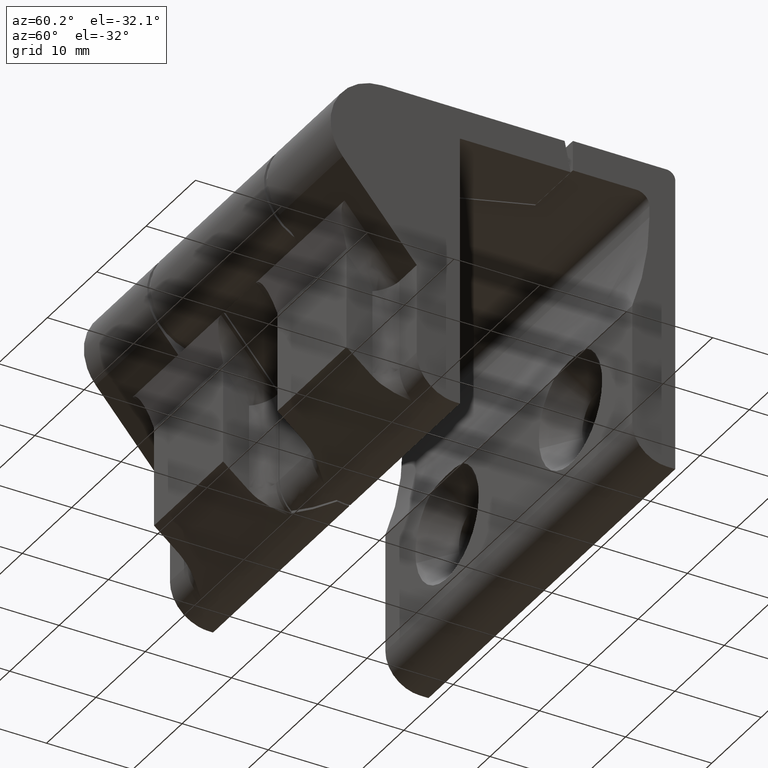
[diagram: clean part render]
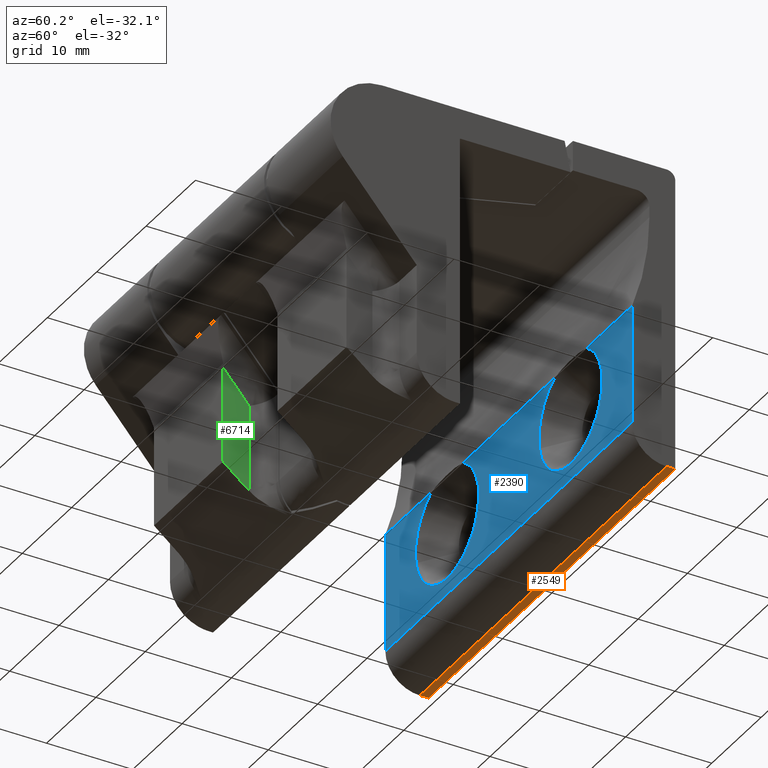
[diagram: same view with three faces highlighted in distinct colors, each labeled with its STEP entity id]
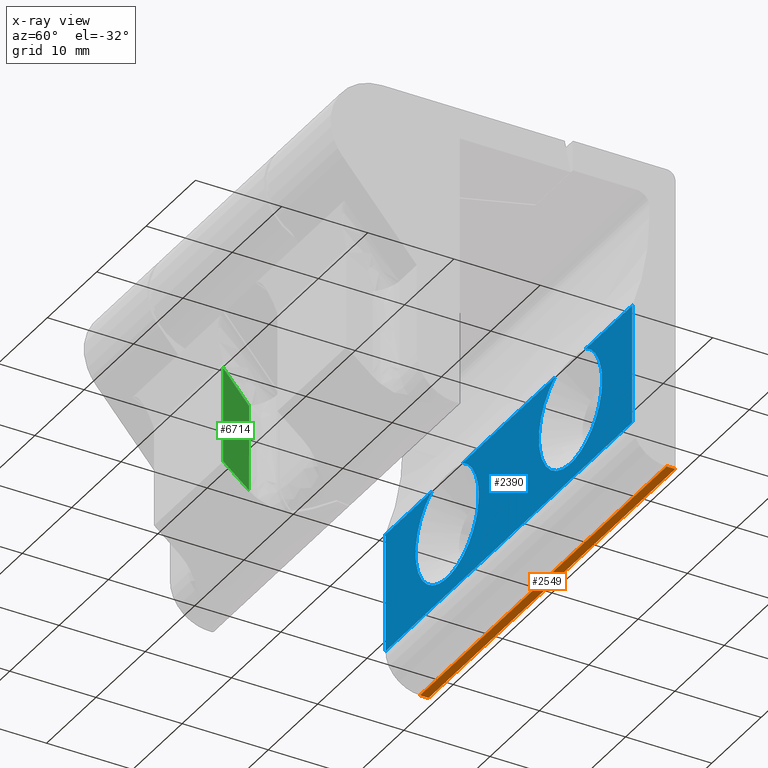
[diagram: x-ray of the same camera — body ghosted, the three highlighted faces saturated]
A machine part, auxiliary view with three faces highlighted in distinct colors.
The next image is the same camera in x-ray (body ghosted, the three faces saturated) — at least one of them is partly hidden behind the body in this view.
Their STEP definitions:

[orange] entity #2549 — the highlighted face is a freeform B-spline surface patch.
#2234=CARTESIAN_POINT('',(-25.0,0.0,3.703349E-011));
#2235=VERTEX_POINT('',#2234);
#2241=CARTESIAN_POINT('',(-25.0,-1.0,3.714717E-011));
#2242=VERTEX_POINT('',#2241);
#2243=CARTESIAN_POINT('',(-25.0,-1.0,3.714717E-011));
#2244=CARTESIAN_POINT('',(-25.0,0.0,3.703349E-011));
#2245=QUASI_UNIFORM_CURVE('',1,(#2243,#2244),.UNSPECIFIED.,.F.,.U.);
#2246=EDGE_CURVE('',#2242,#2235,#2245,.T.);
#2323=CARTESIAN_POINT('',(25.0,-1.0,3.714717E-011));
#2324=VERTEX_POINT('',#2323);
#2325=CARTESIAN_POINT('',(25.0,-1.0,3.714717E-011));
#2326=CARTESIAN_POINT('',(-25.0,-1.0,3.714717E-011));
#2327=QUASI_UNIFORM_CURVE('',1,(#2325,#2326),.UNSPECIFIED.,.F.,.U.);
#2328=EDGE_CURVE('',#2324,#2242,#2327,.T.);
#2528=CARTESIAN_POINT('',(-27.497499903090301,-1.049949998061806,3.703349E-011));
#2529=CARTESIAN_POINT('',(27.497501244194812,-1.049949998061806,3.703349E-011));
#2530=CARTESIAN_POINT('',(-27.497499903090301,0.049950024883896,3.703349E-011));
#2531=CARTESIAN_POINT('',(27.497501244194812,0.049950024883896,3.703349E-011));
#2532=B_SPLINE_SURFACE_WITH_KNOTS('',1,1,((#2528,#2530),(#2529,#2531)),.UNSPECIFIED.,.F.,.F.,.U.,(2,2),(2,2),(0.0,54.995001147285109),(0.041708334948495,0.958291687403247),.UNSPECIFIED.);
#2533=ORIENTED_EDGE('',*,*,#2246,.T.);
#2534=CARTESIAN_POINT('',(25.0,0.0,3.703349E-011));
#2535=VERTEX_POINT('',#2534);
#2536=CARTESIAN_POINT('',(25.0,0.0,3.703349E-011));
#2537=CARTESIAN_POINT('',(-25.0,0.0,3.703349E-011));
#2538=QUASI_UNIFORM_CURVE('',1,(#2536,#2537),.UNSPECIFIED.,.F.,.U.);
#2539=EDGE_CURVE('',#2535,#2235,#2538,.T.);
#2540=ORIENTED_EDGE('',*,*,#2539,.F.);
#2541=CARTESIAN_POINT('',(25.0,-1.0,3.714717E-011));
#2542=CARTESIAN_POINT('',(25.0,0.0,3.703349E-011));
#2543=QUASI_UNIFORM_CURVE('',1,(#2541,#2542),.UNSPECIFIED.,.F.,.U.);
#2544=EDGE_CURVE('',#2324,#2535,#2543,.T.);
#2545=ORIENTED_EDGE('',*,*,#2544,.F.);
#2546=ORIENTED_EDGE('',*,*,#2328,.T.);
#2547=EDGE_LOOP('',(#2533,#2540,#2545,#2546));
#2548=FACE_OUTER_BOUND('',#2547,.T.);
#2549=ADVANCED_FACE('',(#2548),#2532,.F.);

[blue] entity #2390 — the highlighted face is a freeform B-spline surface patch.
#23=CARTESIAN_POINT('',(-6.215350853110225,-5.000000000001153,13.509621883394569));
#24=VERTEX_POINT('',#23);
#25=CARTESIAN_POINT('',(-9.338250573317689,-4.999999999999930,17.864471274386400));
#26=VERTEX_POINT('',#25);
#27=CARTESIAN_POINT('',(-6.215350853110225,-5.000000000001153,13.509621883394571));
#28=CARTESIAN_POINT('',(-6.772994179405200,-5.000000000000541,16.406884824056164));
#29=CARTESIAN_POINT('',(-9.338250573317689,-4.999999999999930,17.864471274386400));
#37=(BOUNDED_CURVE()B_SPLINE_CURVE(2,(#27,#28,#29),.UNSPECIFIED.,.F.,.U.)B_SPLINE_CURVE_WITH_KNOTS((3,3),(0.836725414062064,1.0),.UNSPECIFIED.)CURVE()GEOMETRIC_REPRESENTATION_ITEM()RATIONAL_B_SPLINE_CURVE((0.905888387659489,0.864354045814700,1.0))REPRESENTATION_ITEM(''));
#38=EDGE_CURVE('',#24,#26,#37,.T.);
#40=CARTESIAN_POINT('',(-15.661749426682549,-4.999999999999941,17.864471274386450));
#41=VERTEX_POINT('',#40);
#63=CARTESIAN_POINT('',(-18.784649146897198,-5.000000000001527,11.090378116716490));
#64=VERTEX_POINT('',#63);
#65=CARTESIAN_POINT('',(-15.661749426682549,-4.999999999999941,17.864471274386450));
#66=CARTESIAN_POINT('',(-19.652079338343942,-5.000000000000728,15.597153736307485));
#67=CARTESIAN_POINT('',(-18.784649146897202,-5.000000000001527,11.090378116716495));
#75=(BOUNDED_CURVE()B_SPLINE_CURVE(2,(#65,#66,#67),.UNSPECIFIED.,.F.,.U.)B_SPLINE_CURVE_WITH_KNOTS((3,3),(0.0,0.236180843232991),.UNSPECIFIED.)CURVE()GEOMETRIC_REPRESENTATION_ITEM()RATIONAL_B_SPLINE_CURVE((1.0,0.803784675633441,0.978307757379911))REPRESENTATION_ITEM(''));
#76=EDGE_CURVE('',#41,#64,#75,.T.);
#158=CARTESIAN_POINT('',(-18.784649146897195,-5.000000000001527,11.090378116716487));
#159=CARTESIAN_POINT('',(-18.743379952205036,-5.000000000001527,10.875962014634066));
#160=CARTESIAN_POINT('',(-18.687593076315551,-5.000000000001527,10.664857216627841));
#161=CARTESIAN_POINT('',(-17.428424641091205,-5.000000000001517,5.900000000022599));
#162=CARTESIAN_POINT('',(-12.500000000000441,-5.000000000001375,5.900000000022803));
#163=CARTESIAN_POINT('',(-7.571575358909541,-5.000000000001234,5.900000000023004));
#164=CARTESIAN_POINT('',(-6.312406923684903,-5.000000000001172,10.664857216628519));
#165=CARTESIAN_POINT('',(-5.939451016309459,-5.000000000001153,12.076170903519431));
#166=CARTESIAN_POINT('',(-6.215350853110225,-5.000000000001153,13.509621883394571));
#174=(BOUNDED_CURVE()B_SPLINE_CURVE(2,(#158,#159,#160,#161,#162,#163,#164,#165,#166),.UNSPECIFIED.,.F.,.U.)B_SPLINE_CURVE_WITH_KNOTS((3,2,2,2,3),(0.236180843232990,0.250000000000000,0.500000000000000,0.750000000000000,0.836725414062064),.UNSPECIFIED.)CURVE()GEOMETRIC_REPRESENTATION_ITEM()RATIONAL_B_SPLINE_CURVE((0.978307757379911,0.988519262229764,1.0,0.792303937863206,1.0,0.792303937863206,1.0,0.927949892048506,0.905888387659489))REPRESENTATION_ITEM(''));
#175=EDGE_CURVE('',#64,#24,#174,.T.);
#245=CARTESIAN_POINT('',(18.784649146889780,-5.000000000001163,13.509621883394511));
#246=VERTEX_POINT('',#245);
#247=CARTESIAN_POINT('',(15.661749426682400,-4.999999999999941,17.864471274386450));
#248=VERTEX_POINT('',#247);
#249=CARTESIAN_POINT('',(18.784649146889784,-5.000000000001163,13.509621883394518));
#250=CARTESIAN_POINT('',(18.227005820594851,-5.000000000000552,16.406884824056149));
#251=CARTESIAN_POINT('',(15.661749426682400,-4.999999999999941,17.864471274386450));
#259=(BOUNDED_CURVE()B_SPLINE_CURVE(2,(#249,#250,#251),.UNSPECIFIED.,.F.,.U.)B_SPLINE_CURVE_WITH_KNOTS((3,3),(0.836725414062064,1.0),.UNSPECIFIED.)CURVE()GEOMETRIC_REPRESENTATION_ITEM()RATIONAL_B_SPLINE_CURVE((0.905888387659488,0.864354045814700,1.0))REPRESENTATION_ITEM(''));
#260=EDGE_CURVE('',#246,#248,#259,.T.);
#262=CARTESIAN_POINT('',(9.338250573317620,-4.999999999999941,17.864471274386450));
#263=VERTEX_POINT('',#262);
#285=CARTESIAN_POINT('',(6.215350853102793,-5.000000000001537,11.090378116716550));
#286=VERTEX_POINT('',#285);
#287=CARTESIAN_POINT('',(9.338250573317620,-4.999999999999941,17.864471274386450));
#288=CARTESIAN_POINT('',(5.347920661656082,-5.000000000000738,15.597153736307627));
#289=CARTESIAN_POINT('',(6.215350853102793,-5.000000000001537,11.090378116716547));
#297=(BOUNDED_CURVE()B_SPLINE_CURVE(2,(#287,#288,#289),.UNSPECIFIED.,.F.,.U.)B_SPLINE_CURVE_WITH_KNOTS((3,3),(0.0,0.236180843232992),.UNSPECIFIED.)CURVE()GEOMETRIC_REPRESENTATION_ITEM()RATIONAL_B_SPLINE_CURVE((1.0,0.803784675633439,0.978307757379914))REPRESENTATION_ITEM(''));
#298=EDGE_CURVE('',#263,#286,#297,.T.);
#380=CARTESIAN_POINT('',(6.215350853102793,-5.000000000001537,11.090378116716549));
#381=CARTESIAN_POINT('',(6.256620047794947,-5.000000000001535,10.875962014634151));
#382=CARTESIAN_POINT('',(6.312406923684416,-5.000000000001536,10.664857216627951));
#383=CARTESIAN_POINT('',(7.571575358908698,-5.000000000001527,5.900000000022602));
#384=CARTESIAN_POINT('',(12.499999999999551,-5.000000000001385,5.900000000022801));
#385=CARTESIAN_POINT('',(17.428424641090398,-5.000000000001243,5.900000000023003));
#386=CARTESIAN_POINT('',(18.687593076315078,-5.000000000001181,10.664857216628439));
#387=CARTESIAN_POINT('',(19.060548983690548,-5.000000000001164,12.076170903519357));
#388=CARTESIAN_POINT('',(18.784649146889784,-5.000000000001163,13.509621883394518));
#396=(BOUNDED_CURVE()B_SPLINE_CURVE(2,(#380,#381,#382,#383,#384,#385,#386,#387,#388),.UNSPECIFIED.,.F.,.U.)B_SPLINE_CURVE_WITH_KNOTS((3,2,2,2,3),(0.236180843232992,0.250000000000000,0.500000000000000,0.750000000000000,0.836725414062064),.UNSPECIFIED.)CURVE()GEOMETRIC_REPRESENTATION_ITEM()RATIONAL_B_SPLINE_CURVE((0.978307757379914,0.988519262229766,1.0,0.792303937863205,1.0,0.792303937863205,1.0,0.927949892048505,0.905888387659488))REPRESENTATION_ITEM(''));
#397=EDGE_CURVE('',#286,#246,#396,.T.);
#2248=CARTESIAN_POINT('',(-25.0,-4.999999999999941,4.000000000037150));
#2249=VERTEX_POINT('',#2248);
#2263=CARTESIAN_POINT('',(-25.0,-4.999999999996651,17.864471274386450));
#2264=VERTEX_POINT('',#2263);
#2265=CARTESIAN_POINT('',(-25.0,-4.999999999996651,17.864471274386450));
#2266=CARTESIAN_POINT('',(-25.0,-4.999999999999941,4.000000000037150));
#2267=QUASI_UNIFORM_CURVE('',1,(#2265,#2266),.UNSPECIFIED.,.F.,.U.);
#2268=EDGE_CURVE('',#2264,#2249,#2267,.T.);
#2330=CARTESIAN_POINT('',(25.0,-4.999999999999941,4.000000000037150));
#2331=VERTEX_POINT('',#2330);
#2345=CARTESIAN_POINT('',(25.0,-4.999999999999941,4.000000000037150));
#2346=CARTESIAN_POINT('',(-25.0,-4.999999999999941,4.000000000037150));
#2347=QUASI_UNIFORM_CURVE('',1,(#2345,#2346),.UNSPECIFIED.,.F.,.U.);
#2348=EDGE_CURVE('',#2331,#2249,#2347,.T.);
#2353=CARTESIAN_POINT('',(-27.497499903090290,-4.999999999999941,3.307469686755439));
#2354=CARTESIAN_POINT('',(-27.497499903090290,-4.999999999999941,18.557001959542259));
#2355=CARTESIAN_POINT('',(27.497501244194801,-4.999999999999941,3.307469686755439));
#2356=CARTESIAN_POINT('',(27.497501244194801,-4.999999999999941,18.557001959542259));
#2357=B_SPLINE_SURFACE_WITH_KNOTS('',1,1,((#2353,#2355),(#2354,#2356)),.UNSPECIFIED.,.F.,.F.,.U.,(2,2),(2,2),(0.0,15.249532272786819),(0.0,54.995001147285102),.UNSPECIFIED.);
#2358=CARTESIAN_POINT('',(9.338250573317620,-4.999999999999941,17.864471274386450));
#2359=CARTESIAN_POINT('',(-9.338250573317689,-4.999999999999930,17.864471274386400));
#2360=QUASI_UNIFORM_CURVE('',1,(#2358,#2359),.UNSPECIFIED.,.F.,.U.);
#2361=EDGE_CURVE('',#263,#26,#2360,.T.);
#2362=ORIENTED_EDGE('',*,*,#2361,.T.);
#2363=ORIENTED_EDGE('',*,*,#38,.F.);
#2364=ORIENTED_EDGE('',*,*,#175,.F.);
#2365=ORIENTED_EDGE('',*,*,#76,.F.);
#2366=CARTESIAN_POINT('',(-15.661749426682549,-4.999999999999941,17.864471274386450));
#2367=CARTESIAN_POINT('',(-25.0,-4.999999999996651,17.864471274386450));
#2368=QUASI_UNIFORM_CURVE('',1,(#2366,#2367),.UNSPECIFIED.,.F.,.U.);
#2369=EDGE_CURVE('',#41,#2264,#2368,.T.);
#2370=ORIENTED_EDGE('',*,*,#2369,.T.);
#2371=ORIENTED_EDGE('',*,*,#2268,.T.);
#2372=ORIENTED_EDGE('',*,*,#2348,.F.);
#2373=CARTESIAN_POINT('',(25.0,-4.999999999996651,17.864471274386450));
#2374=VERTEX_POINT('',#2373);
#2375=CARTESIAN_POINT('',(25.0,-4.999999999996651,17.864471274386450));
#2376=CARTESIAN_POINT('',(25.0,-4.999999999999941,4.000000000037150));
#2377=QUASI_UNIFORM_CURVE('',1,(#2375,#2376),.UNSPECIFIED.,.F.,.U.);
#2378=EDGE_CURVE('',#2374,#2331,#2377,.T.);
#2379=ORIENTED_EDGE('',*,*,#2378,.F.);
#2380=CARTESIAN_POINT('',(25.0,-4.999999999996651,17.864471274386450));
#2381=CARTESIAN_POINT('',(15.661749426682400,-4.999999999999941,17.864471274386450));
#2382=QUASI_UNIFORM_CURVE('',1,(#2380,#2381),.UNSPECIFIED.,.F.,.U.);
#2383=EDGE_CURVE('',#2374,#248,#2382,.T.);
#2384=ORIENTED_EDGE('',*,*,#2383,.T.);
#2385=ORIENTED_EDGE('',*,*,#260,.F.);
#2386=ORIENTED_EDGE('',*,*,#397,.F.);
#2387=ORIENTED_EDGE('',*,*,#298,.F.);
#2388=EDGE_LOOP('',(#2362,#2363,#2364,#2365,#2370,#2371,#2372,#2379,#2384,#2385,#2386,#2387));
#2389=FACE_OUTER_BOUND('',#2388,.T.);
#2390=ADVANCED_FACE('',(#2389),#2357,.F.);

[green] entity #6714 — the highlighted face is a freeform B-spline surface patch.
#6260=CARTESIAN_POINT('',(-5.499999999949949,-32.0,4.500000000037150));
#6261=VERTEX_POINT('',#6260);
#6275=CARTESIAN_POINT('',(-5.499999999949989,-31.985611172317800,4.067741140665389));
#6276=VERTEX_POINT('',#6275);
#6277=CARTESIAN_POINT('',(-5.499999999949949,-31.985611172317888,4.067741140665381));
#6278=CARTESIAN_POINT('',(-5.499999999949949,-32.000000000000007,4.283631086119109));
#6279=CARTESIAN_POINT('',(-5.499999999949949,-32.0,4.500000000037150));
#6287=(BOUNDED_CURVE()B_SPLINE_CURVE(2,(#6277,#6278,#6279),.UNSPECIFIED.,.F.,.U.)CURVE()GEOMETRIC_REPRESENTATION_ITEM()QUASI_UNIFORM_CURVE()RATIONAL_B_SPLINE_CURVE((1.0,0.999446430330999,1.0))REPRESENTATION_ITEM(''));
#6288=EDGE_CURVE('',#6276,#6261,#6287,.T.);
#6346=CARTESIAN_POINT('',(-5.499999999949949,-32.0,14.170702199904641));
#6347=VERTEX_POINT('',#6346);
#6361=CARTESIAN_POINT('',(-5.499999999949949,-32.0,4.500000000037150));
#6362=CARTESIAN_POINT('',(-5.499999999949949,-32.0,14.170702199904641));
#6363=QUASI_UNIFORM_CURVE('',1,(#6361,#6362),.UNSPECIFIED.,.F.,.U.);
#6364=EDGE_CURVE('',#6261,#6347,#6363,.T.);
#6385=CARTESIAN_POINT('',(-5.499999999949989,-35.0,17.745962977686201));
#6386=VERTEX_POINT('',#6385);
#6402=CARTESIAN_POINT('',(-5.499999999949949,-32.0,14.170702199904641));
#6403=CARTESIAN_POINT('',(-5.499999999949989,-35.0,17.745962977686201));
#6404=QUASI_UNIFORM_CURVE('',1,(#6402,#6403),.UNSPECIFIED.,.F.,.U.);
#6405=EDGE_CURVE('',#6347,#6386,#6404,.T.);
#6692=CARTESIAN_POINT('',(-5.499999999949949,-35.150568716100260,3.384513986417248));
#6693=CARTESIAN_POINT('',(-5.499999999949949,-31.835042375365330,3.384513986417248));
#6694=CARTESIAN_POINT('',(-5.499999999949949,-35.150568716100260,18.429190498812840));
#6695=CARTESIAN_POINT('',(-5.499999999949949,-31.835042375365330,18.429190498812840));
#6696=B_SPLINE_SURFACE_WITH_KNOTS('',1,1,((#6692,#6694),(#6693,#6695)),.UNSPECIFIED.,.F.,.F.,.U.,(2,2),(2,2),(0.0,3.315526340734930),(0.0,15.044676512395590),.UNSPECIFIED.);
#6697=CARTESIAN_POINT('',(-5.499999999949989,-35.0,6.597113694237150));
#6698=VERTEX_POINT('',#6697);
#6699=CARTESIAN_POINT('',(-5.499999999949989,-35.0,6.597113694237150));
#6700=CARTESIAN_POINT('',(-5.499999999949989,-31.985611172317800,4.067741140665389));
#6701=QUASI_UNIFORM_CURVE('',1,(#6699,#6700),.UNSPECIFIED.,.F.,.U.);
#6702=EDGE_CURVE('',#6698,#6276,#6701,.T.);
#6703=ORIENTED_EDGE('',*,*,#6702,.T.);
#6704=ORIENTED_EDGE('',*,*,#6288,.T.);
#6705=ORIENTED_EDGE('',*,*,#6364,.T.);
#6706=ORIENTED_EDGE('',*,*,#6405,.T.);
#6707=CARTESIAN_POINT('',(-5.499999999949989,-35.0,17.745962977686201));
#6708=CARTESIAN_POINT('',(-5.499999999949989,-35.0,6.597113694237150));
#6709=QUASI_UNIFORM_CURVE('',1,(#6707,#6708),.UNSPECIFIED.,.F.,.U.);
#6710=EDGE_CURVE('',#6386,#6698,#6709,.T.);
#6711=ORIENTED_EDGE('',*,*,#6710,.T.);
#6712=EDGE_LOOP('',(#6703,#6704,#6705,#6706,#6711));
#6713=FACE_OUTER_BOUND('',#6712,.T.);
#6714=ADVANCED_FACE('',(#6713),#6696,.T.);